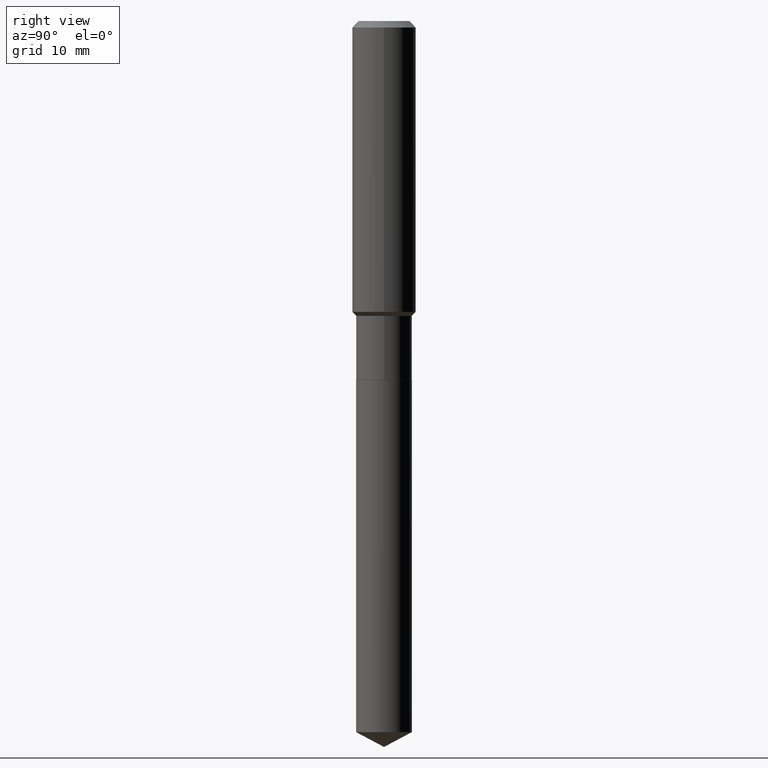
[diagram: clean part render]
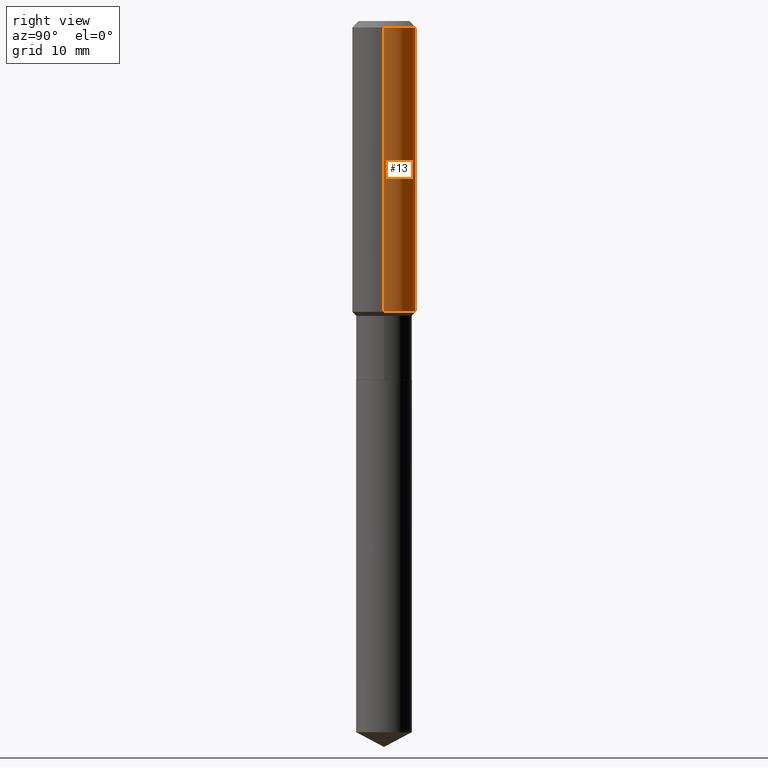
[diagram: same view with one face highlighted and labeled with its STEP entity id]
A machine part, right view. The second image highlights one B-rep face of the part: STEP entity #13.
In plain terms, the highlighted cylindrical surface (edge-blend (fillet) strip) has radius 4.0005 mm, axis along (-0, 0, 1).
Its self-contained STEP definition (entity closure, byte-faithful):
#6 = VERTEX_POINT ( 'NONE', #266 ) ;
#9 = AXIS2_PLACEMENT_3D ( 'NONE', #42, #201, #468 ) ;
#13 = ADVANCED_FACE ( 'NONE', ( #479 ), #415, .T. ) ;
#14 = VERTEX_POINT ( 'NONE', #193 ) ;
#28 = VECTOR ( 'NONE', #206, 39.37007874015748143 ) ;
#32 = DIRECTION ( 'NONE',  ( 1.000000000000000000, -6.982962677686267499E-15, 0.000000000000000000 ) ) ;
#42 = CARTESIAN_POINT ( 'NONE',  ( 7.703226739483228723E-31, -1.099816621735597661E-16, -0.03150000000000019451 ) ) ;
#48 = CARTESIAN_POINT ( 'NONE',  ( -0.1575000000000000011, -1.441198456951520308E-15, -0.03150000000000019451 ) ) ;
#68 = LINE ( 'NONE', #315, #230 ) ;
#83 = CIRCLE ( 'NONE', #284, 0.1575000000000001676 ) ;
#88 = ORIENTED_EDGE ( 'NONE', *, *, #463, .T. ) ;
#91 = EDGE_LOOP ( 'NONE', ( #88, #461, #469, #467 ) ) ;
#93 = LINE ( 'NONE', #173, #28 ) ;
#112 = CIRCLE ( 'NONE', #9, 0.1575000000000000011 ) ;
#149 = DIRECTION ( 'NONE',  ( 1.000000000000000000, -6.982962677686267499E-15, 4.876176775795936353E-29 ) ) ;
#173 = CARTESIAN_POINT ( 'NONE',  ( 0.1575000000000000844, -1.099816621735587677E-15, 7.679978421878603638E-30 ) ) ;
#183 = EDGE_CURVE ( 'NONE', #14, #433, #93, .T. ) ;
#193 = CARTESIAN_POINT ( 'NONE',  ( 0.1575000000000001676, -6.110441491109385816E-15, -1.435100000000000042 ) ) ;
#195 = CARTESIAN_POINT ( 'NONE',  ( 3.509492283756289196E-29, -5.010624869373797547E-15, -1.435100000000000042 ) ) ;
#201 = DIRECTION ( 'NONE',  ( -2.445468806185136597E-29, 3.491481338843145583E-15, 1.000000000000000000 ) ) ;
#206 = DIRECTION ( 'NONE',  ( -2.445468806185136877E-29, 3.491481338843145188E-15, 1.000000000000000000 ) ) ;
#218 = VERTEX_POINT ( 'NONE', #48 ) ;
#230 = VECTOR ( 'NONE', #449, 39.37007874015748143 ) ;
#235 = EDGE_CURVE ( 'NONE', #6, #218, #68, .T. ) ;
#254 = AXIS2_PLACEMENT_3D ( 'NONE', #344, #351, #149 ) ;
#266 = CARTESIAN_POINT ( 'NONE',  ( -0.1575000000000001676, -3.891520060551639155E-15, -1.435100000000000042 ) ) ;
#275 = DIRECTION ( 'NONE',  ( -2.445468806185136597E-29, 3.491481338843145583E-15, 1.000000000000000000 ) ) ;
#284 = AXIS2_PLACEMENT_3D ( 'NONE', #195, #275, #32 ) ;
#301 = EDGE_CURVE ( 'NONE', #433, #218, #112, .T. ) ;
#315 = CARTESIAN_POINT ( 'NONE',  ( -0.1575000000000000844, 1.119104808822158392E-15, -7.747322767151481189E-30 ) ) ;
#344 = CARTESIAN_POINT ( 'NONE',  ( 0.000000000000000000, 0.000000000000000000, 0.000000000000000000 ) ) ;
#351 = DIRECTION ( 'NONE',  ( -2.445468806185136597E-29, 3.491481338843145583E-15, 1.000000000000000000 ) ) ;
#415 = CYLINDRICAL_SURFACE ( 'NONE', #254, 0.1575000000000000844 ) ;
#433 = VERTEX_POINT ( 'NONE', #487 ) ;
#449 = DIRECTION ( 'NONE',  ( -2.445468806185136877E-29, 3.491481338843145188E-15, 1.000000000000000000 ) ) ;
#461 = ORIENTED_EDGE ( 'NONE', *, *, #235, .T. ) ;
#463 = EDGE_CURVE ( 'NONE', #14, #6, #83, .T. ) ;
#467 = ORIENTED_EDGE ( 'NONE', *, *, #183, .F. ) ;
#468 = DIRECTION ( 'NONE',  ( 1.000000000000000000, -6.982962677686265922E-15, 0.000000000000000000 ) ) ;
#469 = ORIENTED_EDGE ( 'NONE', *, *, #301, .F. ) ;
#479 = FACE_OUTER_BOUND ( 'NONE', #91, .T. ) ;
#487 = CARTESIAN_POINT ( 'NONE',  ( 0.1575000000000000011, -1.209798283909146741E-15, -0.03150000000000019451 ) ) ;